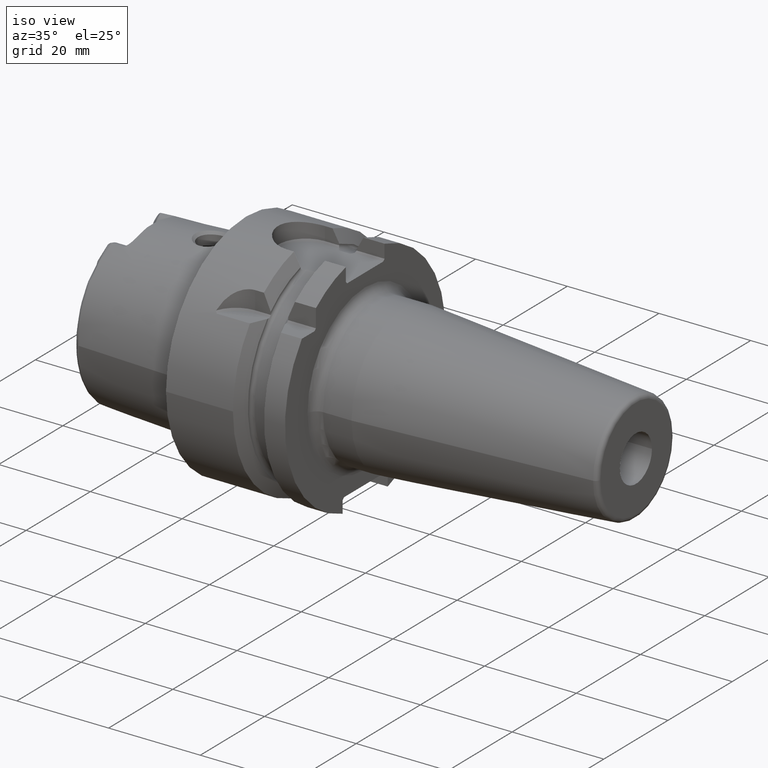
[diagram: clean part render]
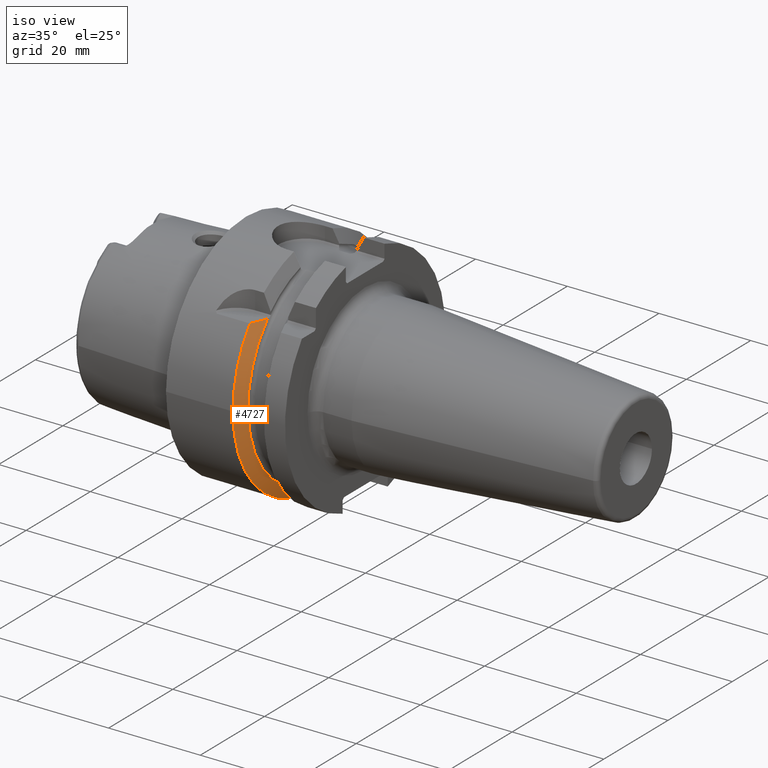
[diagram: same view with one face highlighted and labeled with its STEP entity id]
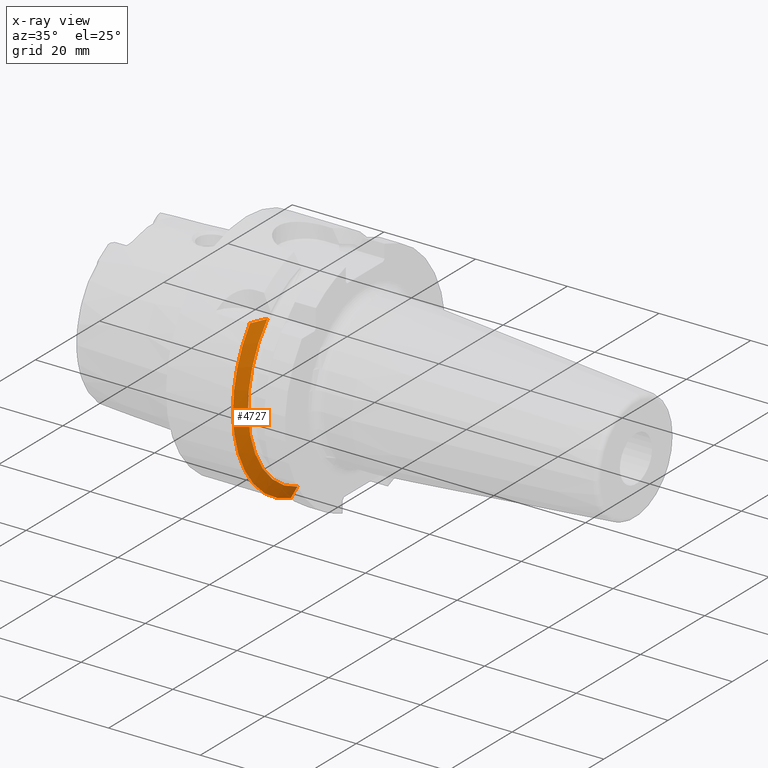
[diagram: x-ray of the same camera — body ghosted, the highlighted face saturated]
A machine part, iso view. The second image highlights one B-rep face of the part: STEP entity #4727.
The next image is the same camera in x-ray: the body ghosted, the highlighted face saturated — about 2% of this face is hidden behind the body in this view.
In plain terms, the highlighted conical surface has half-angle 60 deg.
Its self-contained STEP definition (entity closure, byte-faithful):
#970=CARTESIAN_POINT('',(1.460806716851E1,0.E0,0.E0));
#971=DIRECTION('',(1.E0,0.E0,0.E0));
#972=DIRECTION('',(0.E0,-7.893060243024E-1,6.14E-1));
#973=AXIS2_PLACEMENT_3D('',#970,#971,#972);
#1091=CARTESIAN_POINT('',(1.460806716851E1,0.E0,0.E0));
#1092=DIRECTION('',(1.E0,0.E0,0.E0));
#1093=DIRECTION('',(0.E0,-1.E0,0.E0));
#1094=AXIS2_PLACEMENT_3D('',#1091,#1092,#1093);
#1427=CARTESIAN_POINT('',(1.60875E1,0.E0,0.E0));
#1428=DIRECTION('',(1.E0,0.E0,0.E0));
#1429=DIRECTION('',(0.E0,-7.293684165425E-1,6.841211244731E-1));
#1430=AXIS2_PLACEMENT_3D('',#1427,#1428,#1429);
#1667=CARTESIAN_POINT('',(1.60875E1,-7.0175E0,-2.131192663117E1));
#1668=CARTESIAN_POINT('',(1.593188333563E1,-7.0175E0,-2.159569853632E1));
#1669=CARTESIAN_POINT('',(1.561480512555E1,-7.0175E0,-2.217279119970E1));
#1670=CARTESIAN_POINT('',(1.512190269435E1,-7.0175E0,-2.306665585329E1));
#1671=CARTESIAN_POINT('',(1.478131530124E1,-7.0175E0,-2.368224465230E1));
#1672=CARTESIAN_POINT('',(1.460806716851E1,-7.0175E0,-2.399488890889E1));
#1735=CARTESIAN_POINT('',(1.60875E1,-1.636523825010E1,1.535E1));
#1736=CARTESIAN_POINT('',(1.594222955282E1,-1.671021589054E1,1.535E1));
#1737=CARTESIAN_POINT('',(1.563917139666E1,-1.741962945744E1,1.535E1));
#1738=CARTESIAN_POINT('',(1.514914658008E1,-1.853580810939E1,1.535E1));
#1739=CARTESIAN_POINT('',(1.479309423109E1,-1.932662776812E1,1.535E1));
#1740=CARTESIAN_POINT('',(1.460806716851E1,-1.973265060756E1,1.535E1));
#2958=CARTESIAN_POINT('',(1.60875E1,-7.0175E0,-2.131192663117E1));
#2960=VERTEX_POINT('',#2958);
#2966=VERTEX_POINT('',#1672);
#3003=CARTESIAN_POINT('',(1.60875E1,-1.636523825010E1,1.535E1));
#3005=VERTEX_POINT('',#3003);
#3013=VERTEX_POINT('',#1740);
#3110=CARTESIAN_POINT('',(1.460806716851E1,-2.5E1,0.E0));
#3111=VERTEX_POINT('',#3110);
#4713=CARTESIAN_POINT('',(1.534778358426E1,0.E0,0.E0));
#4714=DIRECTION('',(-1.E0,0.E0,0.E0));
#4715=DIRECTION('',(0.E0,1.E0,0.E0));
#4716=AXIS2_PLACEMENT_3D('',#4713,#4714,#4715);
#4717=CONICAL_SURFACE('',#4716,2.371877358474E1,6.E1);
#4718=ORIENTED_EDGE('',*,*,#4518,.T.);
#4720=ORIENTED_EDGE('',*,*,#4719,.T.);
#4721=ORIENTED_EDGE('',*,*,#4330,.F.);
#4722=ORIENTED_EDGE('',*,*,#4228,.F.);
#4724=ORIENTED_EDGE('',*,*,#4723,.F.);
#4725=EDGE_LOOP('',(#4718,#4720,#4721,#4722,#4724));
#4726=FACE_OUTER_BOUND('',#4725,.F.);
#4727=ADVANCED_FACE('',(#4726),#4717,.T.);
#974=CIRCLE('',#973,2.5E1);
#1095=CIRCLE('',#1094,2.5E1);
#1431=CIRCLE('',#1430,2.243754716948E1);
#1673=B_SPLINE_CURVE_WITH_KNOTS('',3,(#1667,#1668,#1669,#1670,#1671,#1672),
.UNSPECIFIED.,.F.,.F.,(4,1,1,4),(0.E0,3.333333333333E-1,6.666666666667E-1,1.E0),
.UNSPECIFIED.);
#1741=B_SPLINE_CURVE_WITH_KNOTS('',3,(#1735,#1736,#1737,#1738,#1739,#1740),
.UNSPECIFIED.,.F.,.F.,(4,1,1,4),(0.E0,3.333333333333E-1,6.666666666667E-1,1.E0),
.UNSPECIFIED.);
#4228=EDGE_CURVE('',#3013,#3111,#974,.T.);
#4330=EDGE_CURVE('',#3111,#2966,#1095,.T.);
#4518=EDGE_CURVE('',#3005,#2960,#1431,.T.);
#4719=EDGE_CURVE('',#2960,#2966,#1673,.T.);
#4723=EDGE_CURVE('',#3005,#3013,#1741,.T.);